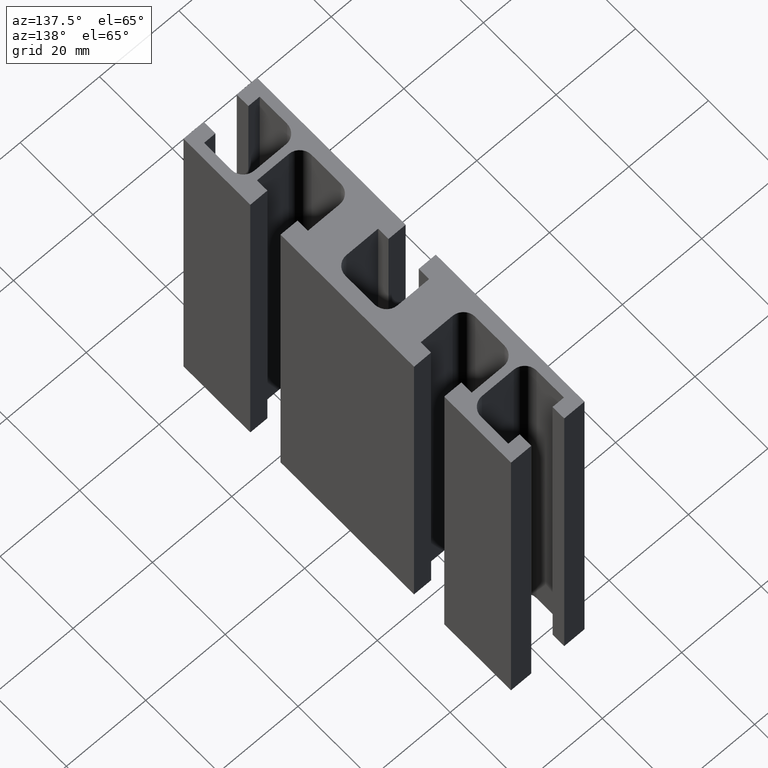
[diagram: clean part render]
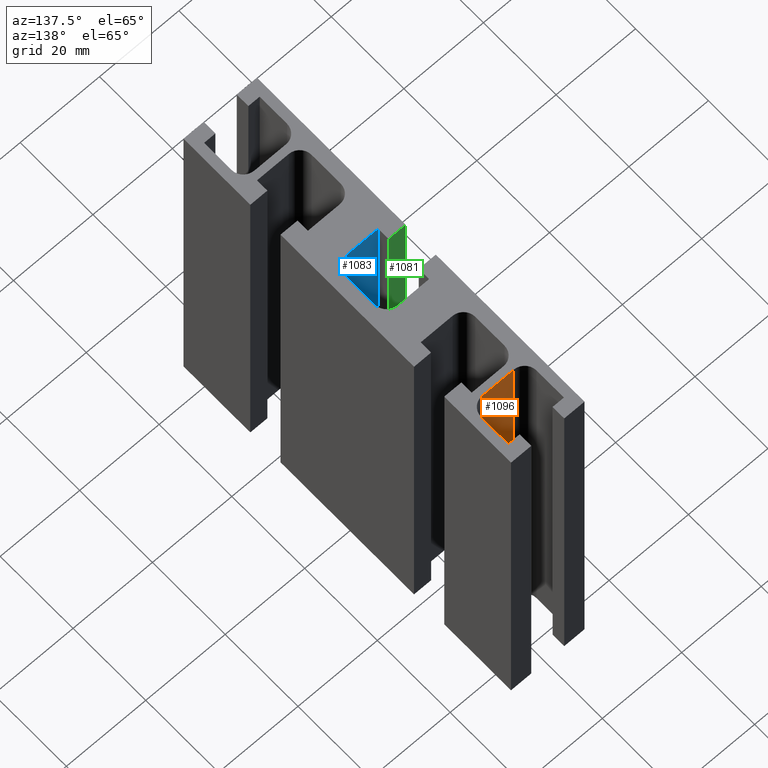
[diagram: same view with three faces highlighted in distinct colors, each labeled with its STEP entity id]
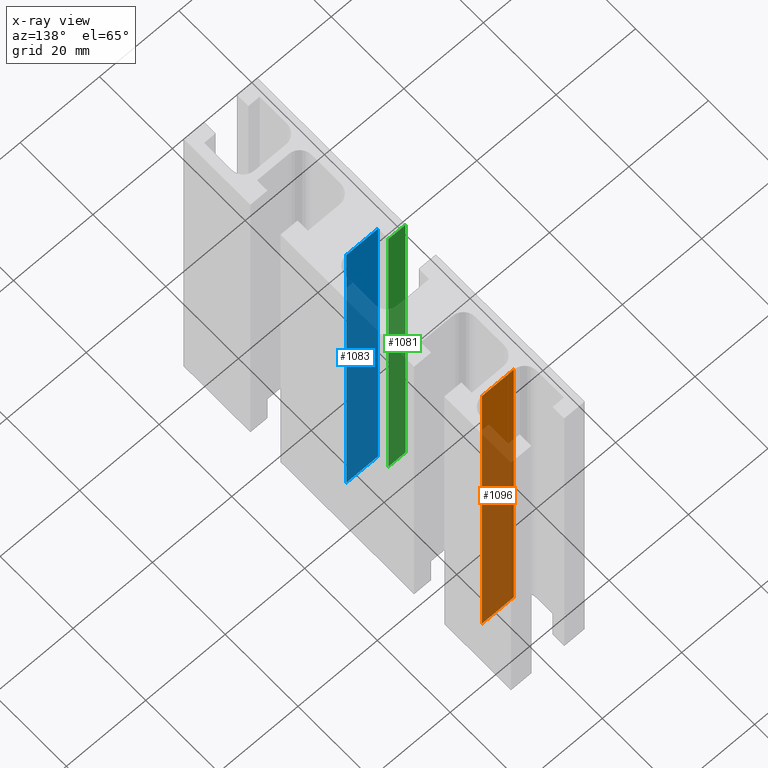
[diagram: x-ray of the same camera — body ghosted, the three highlighted faces saturated]
A machine part, auxiliary view with three faces highlighted in distinct colors.
The next image is the same camera in x-ray (body ghosted, the three faces saturated) — at least one of them is partly hidden behind the body in this view.
Their STEP definitions:

[orange] entity #1096 — the highlighted planar face has unit normal (-0, 1, 0).
#60=FACE_OUTER_BOUND('',#116,.T.);
#116=EDGE_LOOP('',(#771,#772,#773,#774));
#196=LINE('',#1604,#338);
#197=LINE('',#1607,#339);
#198=LINE('',#1609,#340);
#199=LINE('',#1610,#341);
#338=VECTOR('',#1298,100.);
#339=VECTOR('',#1301,8.00000000000001);
#340=VECTOR('',#1302,8.00000000000001);
#341=VECTOR('',#1303,100.);
#471=VERTEX_POINT('',#1600);
#472=VERTEX_POINT('',#1602);
#473=VERTEX_POINT('',#1606);
#474=VERTEX_POINT('',#1608);
#594=EDGE_CURVE('',#471,#472,#196,.T.);
#595=EDGE_CURVE('',#471,#473,#197,.T.);
#596=EDGE_CURVE('',#474,#472,#198,.T.);
#597=EDGE_CURVE('',#473,#474,#199,.T.);
#771=ORIENTED_EDGE('',*,*,#595,.F.);
#772=ORIENTED_EDGE('',*,*,#594,.T.);
#773=ORIENTED_EDGE('',*,*,#596,.F.);
#774=ORIENTED_EDGE('',*,*,#597,.F.);
#1047=PLANE('',#1160);
#1096=ADVANCED_FACE('',(#60),#1047,.T.);
#1160=AXIS2_PLACEMENT_3D('',#1605,#1299,#1300);
#1298=DIRECTION('',(0.,0.,1.));
#1299=DIRECTION('center_axis',(-1.22124532708767E-14,1.,0.));
#1300=DIRECTION('ref_axis',(-1.,-1.20792265079217E-14,0.));
#1301=DIRECTION('',(1.,1.22124532708767E-14,0.));
#1302=DIRECTION('',(-1.,-1.22124532708767E-14,0.));
#1303=DIRECTION('',(0.,0.,1.));
#1600=CARTESIAN_POINT('',(-3.99999999999898,31.3000000000009,0.));
#1602=CARTESIAN_POINT('',(-3.99999999999898,31.3000000000009,100.));
#1604=CARTESIAN_POINT('',(-3.99999999999898,31.3000000000009,0.));
#1605=CARTESIAN_POINT('Origin',(4.00000000000103,31.3000000000009,0.));
#1606=CARTESIAN_POINT('',(4.00000000000103,31.3000000000009,0.));
#1607=CARTESIAN_POINT('',(-3.99999999999898,31.3000000000009,0.));
#1608=CARTESIAN_POINT('',(4.00000000000102,31.3000000000009,100.));
#1609=CARTESIAN_POINT('',(-3.99999999999898,31.3000000000009,100.));
#1610=CARTESIAN_POINT('',(4.00000000000103,31.3000000000009,0.));

[blue] entity #1083 — the highlighted planar face has unit normal (0, 1, 0).
#47=FACE_OUTER_BOUND('',#103,.T.);
#103=EDGE_LOOP('',(#719,#720,#721,#722));
#163=LINE('',#1526,#305);
#164=LINE('',#1529,#306);
#165=LINE('',#1531,#307);
#166=LINE('',#1532,#308);
#305=VECTOR('',#1227,100.);
#306=VECTOR('',#1230,7.9999999999999);
#307=VECTOR('',#1231,7.9999999999999);
#308=VECTOR('',#1232,100.);
#445=VERTEX_POINT('',#1522);
#446=VERTEX_POINT('',#1524);
#447=VERTEX_POINT('',#1528);
#448=VERTEX_POINT('',#1530);
#555=EDGE_CURVE('',#445,#446,#163,.T.);
#556=EDGE_CURVE('',#445,#447,#164,.T.);
#557=EDGE_CURVE('',#448,#446,#165,.T.);
#558=EDGE_CURVE('',#447,#448,#166,.T.);
#719=ORIENTED_EDGE('',*,*,#556,.F.);
#720=ORIENTED_EDGE('',*,*,#555,.T.);
#721=ORIENTED_EDGE('',*,*,#557,.F.);
#722=ORIENTED_EDGE('',*,*,#558,.F.);
#1037=PLANE('',#1141);
#1083=ADVANCED_FACE('',(#47),#1037,.T.);
#1141=AXIS2_PLACEMENT_3D('',#1527,#1228,#1229);
#1227=DIRECTION('',(0.,0.,1.));
#1228=DIRECTION('center_axis',(1.83186799063153E-14,1.,0.));
#1229=DIRECTION('ref_axis',(-1.,1.82964754458226E-14,0.));
#1230=DIRECTION('',(1.,-1.83186799063153E-14,0.));
#1231=DIRECTION('',(-1.,1.83186799063153E-14,0.));
#1232=DIRECTION('',(0.,0.,1.));
#1522=CARTESIAN_POINT('',(-4.94999999999993,-6.99999999999931,0.));
#1524=CARTESIAN_POINT('',(-4.94999999999993,-6.99999999999931,100.));
#1526=CARTESIAN_POINT('',(-4.94999999999993,-6.99999999999931,0.));
#1527=CARTESIAN_POINT('Origin',(3.04999999999997,-6.99999999999946,0.));
#1528=CARTESIAN_POINT('',(3.04999999999997,-6.99999999999946,0.));
#1529=CARTESIAN_POINT('',(-4.94999999999993,-6.99999999999931,0.));
#1530=CARTESIAN_POINT('',(3.04999999999997,-6.99999999999946,100.));
#1531=CARTESIAN_POINT('',(-4.94999999999993,-6.99999999999931,100.));
#1532=CARTESIAN_POINT('',(3.04999999999997,-6.99999999999946,0.));

[green] entity #1081 — the highlighted planar face has unit normal (0, 1, 0).
#45=FACE_OUTER_BOUND('',#101,.T.);
#101=EDGE_LOOP('',(#711,#712,#713,#714));
#157=LINE('',#1515,#299);
#158=LINE('',#1517,#300);
#159=LINE('',#1519,#301);
#160=LINE('',#1520,#302);
#299=VECTOR('',#1219,4.30000000000005);
#300=VECTOR('',#1220,100.);
#301=VECTOR('',#1221,4.30000000000005);
#302=VECTOR('',#1222,100.);
#441=VERTEX_POINT('',#1513);
#442=VERTEX_POINT('',#1514);
#443=VERTEX_POINT('',#1516);
#444=VERTEX_POINT('',#1518);
#549=EDGE_CURVE('',#441,#442,#157,.T.);
#550=EDGE_CURVE('',#441,#443,#158,.T.);
#551=EDGE_CURVE('',#444,#443,#159,.T.);
#552=EDGE_CURVE('',#442,#444,#160,.T.);
#711=ORIENTED_EDGE('',*,*,#549,.F.);
#712=ORIENTED_EDGE('',*,*,#550,.T.);
#713=ORIENTED_EDGE('',*,*,#551,.F.);
#714=ORIENTED_EDGE('',*,*,#552,.F.);
#1035=PLANE('',#1139);
#1081=ADVANCED_FACE('',(#45),#1035,.T.);
#1139=AXIS2_PLACEMENT_3D('',#1512,#1217,#1218);
#1217=DIRECTION('center_axis',(0.,1.,0.));
#1218=DIRECTION('ref_axis',(-1.,0.,0.));
#1219=DIRECTION('',(1.,0.,0.));
#1220=DIRECTION('',(0.,0.,1.));
#1221=DIRECTION('',(-1.,0.,0.));
#1222=DIRECTION('',(0.,0.,1.));
#1512=CARTESIAN_POINT('Origin',(-4.94999999999988,-4.14999999999978,0.));
#1513=CARTESIAN_POINT('',(-9.24999999999992,-4.14999999999978,0.));
#1514=CARTESIAN_POINT('',(-4.94999999999988,-4.14999999999978,0.));
#1515=CARTESIAN_POINT('',(-9.24999999999992,-4.14999999999978,0.));
#1516=CARTESIAN_POINT('',(-9.24999999999992,-4.14999999999978,100.));
#1517=CARTESIAN_POINT('',(-9.24999999999992,-4.14999999999978,0.));
#1518=CARTESIAN_POINT('',(-4.94999999999988,-4.14999999999978,100.));
#1519=CARTESIAN_POINT('',(-9.24999999999992,-4.14999999999978,100.));
#1520=CARTESIAN_POINT('',(-4.94999999999988,-4.14999999999978,0.));